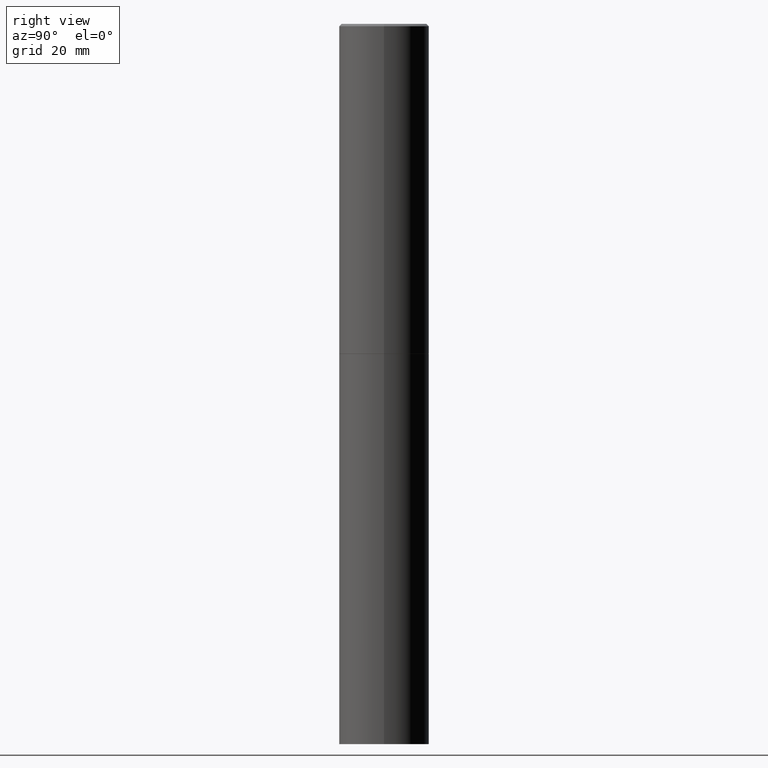
[diagram: clean part render]
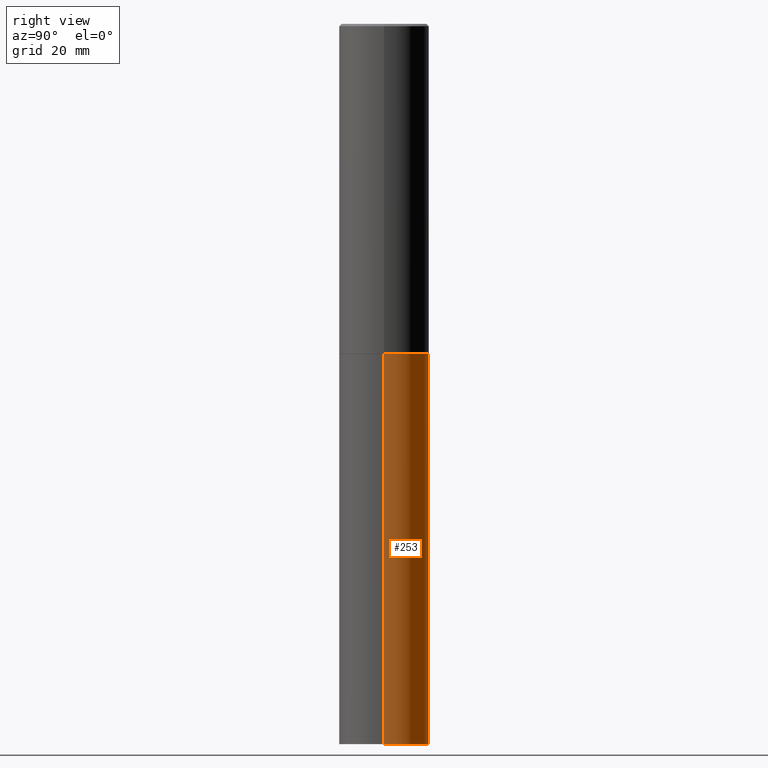
[diagram: same view with one face highlighted and labeled with its STEP entity id]
A machine part, right view. The second image highlights one B-rep face of the part: STEP entity #253.
In plain terms, the highlighted cylindrical surface (partial cylindrical patch) has radius 9.525 mm, axis along (-0, 0, 1).
Its self-contained STEP definition (entity closure, byte-faithful):
#3 = VERTEX_POINT ( 'NONE', #124 ) ;
#6 = FACE_OUTER_BOUND ( 'NONE', #59, .T. ) ;
#13 = CARTESIAN_POINT ( 'NONE',  ( 1.467281283711081958E-28, -2.094888803305887271E-14, -6.000000000000000888 ) ) ;
#20 = EDGE_CURVE ( 'NONE', #30, #3, #56, .T. ) ;
#30 = VERTEX_POINT ( 'NONE', #41 ) ;
#41 = CARTESIAN_POINT ( 'NONE',  ( 0.3750000000000000555, -1.222018468595100145E-14, -2.750000000000000000 ) ) ;
#56 = CIRCLE ( 'NONE', #68, 0.3750000000000000555 ) ;
#59 = EDGE_LOOP ( 'NONE', ( #222, #136, #208, #84 ) ) ;
#63 = DIRECTION ( 'NONE',  ( -2.445468806185136597E-29, 3.491481338843145583E-15, 1.000000000000000000 ) ) ;
#68 = AXIS2_PLACEMENT_3D ( 'NONE', #177, #239, #271 ) ;
#77 = VERTEX_POINT ( 'NONE', #356 ) ;
#84 = ORIENTED_EDGE ( 'NONE', *, *, #291, .F. ) ;
#86 = DIRECTION ( 'NONE',  ( -2.445468806185136877E-29, 3.491481338843145188E-15, 1.000000000000000000 ) ) ;
#94 = CYLINDRICAL_SURFACE ( 'NONE', #274, 0.3750000000000000555 ) ;
#124 = CARTESIAN_POINT ( 'NONE',  ( -0.3750000000000000555, -1.261069559833838480E-14, -2.750000000000000000 ) ) ;
#131 = VERTEX_POINT ( 'NONE', #240 ) ;
#136 = ORIENTED_EDGE ( 'NONE', *, *, #270, .T. ) ;
#140 = DIRECTION ( 'NONE',  ( -2.445468806185136597E-29, 3.491481338843145583E-15, 1.000000000000000000 ) ) ;
#155 = CIRCLE ( 'NONE', #178, 0.3750000000000000555 ) ;
#161 = LINE ( 'NONE', #347, #337 ) ;
#167 = DIRECTION ( 'NONE',  ( 1.000000000000000000, -6.982962677686265922E-15, 4.876176775795935793E-29 ) ) ;
#177 = CARTESIAN_POINT ( 'NONE',  ( 6.725039217009124520E-29, -9.601573681818649859E-15, -2.750000000000000000 ) ) ;
#178 = AXIS2_PLACEMENT_3D ( 'NONE', #13, #140, #258 ) ;
#201 = CARTESIAN_POINT ( 'NONE',  ( 0.3750000000000000555, -2.618611004132350016E-15, 1.828566290923476203E-29 ) ) ;
#208 = ORIENTED_EDGE ( 'NONE', *, *, #20, .F. ) ;
#222 = ORIENTED_EDGE ( 'NONE', *, *, #247, .T. ) ;
#231 = LINE ( 'NONE', #201, #316 ) ;
#234 = CARTESIAN_POINT ( 'NONE',  ( 0.000000000000000000, 0.000000000000000000, 0.000000000000000000 ) ) ;
#239 = DIRECTION ( 'NONE',  ( -2.445468806185136597E-29, 3.491481338843145583E-15, 1.000000000000000000 ) ) ;
#240 = CARTESIAN_POINT ( 'NONE',  ( 0.3750000000000000555, -2.356749903719122272E-14, -6.000000000000000888 ) ) ;
#247 = EDGE_CURVE ( 'NONE', #131, #77, #155, .T. ) ;
#253 = ADVANCED_FACE ( 'NONE', ( #6 ), #94, .T. ) ;
#258 = DIRECTION ( 'NONE',  ( 1.000000000000000000, -6.982962677686261189E-15, 0.000000000000000000 ) ) ;
#270 = EDGE_CURVE ( 'NONE', #77, #3, #161, .T. ) ;
#271 = DIRECTION ( 'NONE',  ( 1.000000000000000000, -6.982962677686266711E-15, 0.000000000000000000 ) ) ;
#274 = AXIS2_PLACEMENT_3D ( 'NONE', #234, #63, #167 ) ;
#291 = EDGE_CURVE ( 'NONE', #131, #30, #231, .T. ) ;
#316 = VECTOR ( 'NONE', #322, 39.37007874015748143 ) ;
#322 = DIRECTION ( 'NONE',  ( -2.445468806185136877E-29, 3.491481338843145188E-15, 1.000000000000000000 ) ) ;
#337 = VECTOR ( 'NONE', #86, 39.37007874015748143 ) ;
#347 = CARTESIAN_POINT ( 'NONE',  ( -0.3750000000000000555, 2.664535259100376091E-15, -1.844600658845589598E-29 ) ) ;
#356 = CARTESIAN_POINT ( 'NONE',  ( -0.3750000000000000555, -1.261069559833838480E-14, -6.000000000000000888 ) ) ;